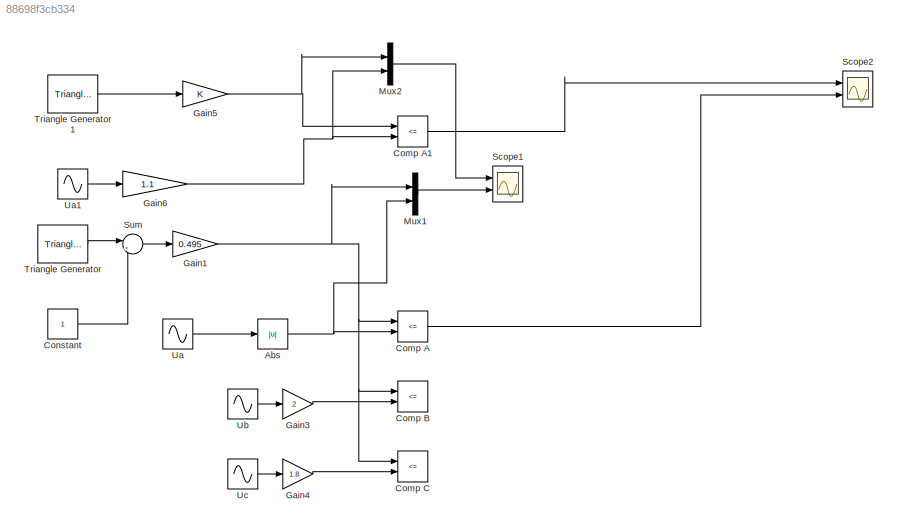
MODEL slx_88698f3cb334
KIND model
BLOCK [Abs] Abs
  SaturateOnIntegerOverflow = off
BLOCK [RelationalOperator] Comp A
  InputSameDT = off
  Operator = <=
  OutDataTypeStr = boolean
  Ports = [2, 1]
BLOCK [RelationalOperator] Comp A1
  InputSameDT = off
  Operator = <=
  OutDataTypeStr = boolean
  Ports = [2, 1]
BLOCK [RelationalOperator] Comp B
  InputSameDT = off
  Operator = <=
  OutDataTypeStr = boolean
  Ports = [2, 1]
BLOCK [RelationalOperator] Comp C
  InputSameDT = off
  Operator = <=
  OutDataTypeStr = boolean
  Ports = [2, 1]
BLOCK [Constant] Constant
BLOCK [Gain] Gain1
  Gain = 0.495
  OutDataTypeStr = Inherit: Inherit via internal rule
  ParamDataTypeStr = Inherit: Inherit via internal rule
  SaturateOnIntegerOverflow = off
BLOCK [Gain] Gain3
  Gain = 2
  OutDataTypeStr = Inherit: Inherit via internal rule
  ParamDataTypeStr = Inherit: Inherit via internal rule
  SaturateOnIntegerOverflow = off
BLOCK [Gain] Gain4
  Gain = 1.8
  OutDataTypeStr = Inherit: Inherit via internal rule
  ParamDataTypeStr = Inherit: Inherit via internal rule
  SaturateOnIntegerOverflow = off
BLOCK [Gain] Gain5
  OutDataTypeStr = Inherit: Inherit via internal rule
  ParamDataTypeStr = Inherit: Inherit via internal rule
  SaturateOnIntegerOverflow = off
BLOCK [Gain] Gain6
  Gain = 1.1
  OutDataTypeStr = Inherit: Inherit via internal rule
  ParamDataTypeStr = Inherit: Inherit via internal rule
  SaturateOnIntegerOverflow = off
BLOCK [Mux] Mux1
  DisplayOption = bar
  Inputs = 2
  Ports = [2, 1]
BLOCK [Mux] Mux2
  DisplayOption = bar
  Inputs = 2
  Ports = [2, 1]
BLOCK [Scope] Scope1
  DataFormat = StructureWithTime
  Floating = off
  LimitDataPoints = off
  NumInputPorts = 2
  Ports = [2]
  SampleInput = on
  SampleTime = 1/60/5000
  ShowLegends = off
  TimeRange = 0.01
  YMax = 1.2~1.2
  YMin = -1.2~-0.2
BLOCK [Scope] Scope2
  DataFormat = StructureWithTime
  Floating = off
  LimitDataPoints = off
  NumInputPorts = 2
  Ports = [2]
  SampleInput = on
  SampleTime = 1/60/5000
  SaveName = ScopeData1
  ShowLegends = off
  TimeRange = 0.01
  YMax = 1.2~1.2
  YMin = -0.2~-0.2
BLOCK [Sum] Sum
  IconShape = round
  InputSameDT = off
  Inputs = |++
  OutDataTypeStr = Inherit: Inherit via internal rule
  Ports = [2, 1]
  SaturateOnIntegerOverflow = off
BLOCK [Reference] Triangle Generator  REF=powerlib_meascontrol/Pulse & Signal
Generators/Triangle
Generator
  Freq = 6000
  Phase = 0
  Ports = [0, 1]
  SourceBlock = powerlib_meascontrol/Pulse & Signal\nGenerators/Triangle\nGenerator
  SourceType = Triangle Generator
  Ts = 0
BLOCK [Reference] Triangle Generator1  REF=powerlib_meascontrol/Pulse & Signal
Generators/Triangle
Generator
  Freq = 6000
  Phase = 0
  Ports = [0, 1]
  SourceBlock = powerlib_meascontrol/Pulse & Signal\nGenerators/Triangle\nGenerator
  SourceType = Triangle Generator
  Ts = 0
BLOCK [Sin] Ua
  Frequency = 2*pi*25
  Phase = 0.785
  Ports = [0, 1]
  SampleTime = 0
  VectorParams1D = off
BLOCK [Sin] Ua1
  Frequency = 2*pi*50
  Ports = [0, 1]
  SampleTime = 0
  VectorParams1D = off
BLOCK [Sin] Ub
  Frequency = 2*pi*50
  Phase = 1.0472
  Ports = [0, 1]
  SampleTime = 0
  VectorParams1D = off
BLOCK [Sin] Uc
  Frequency = 2*pi*50
  Phase = 2.0944
  Ports = [0, 1]
  SampleTime = 0
  VectorParams1D = off
NET Abs:1 -> Comp A:2, Mux1:2
LINE Comp A1:1 -> Scope2:1
LINE Comp A:1 -> Scope2:2
LINE Constant:1 -> Sum:2
NET Gain1:1 -> Comp A:1, Comp B:1, Comp C:1, Mux1:1
LINE Gain3:1 -> Comp B:2
LINE Gain4:1 -> Comp C:2
NET Gain5:1 -> Comp A1:1, Mux2:1
NET Gain6:1 -> Comp A1:2, Mux2:2
LINE Mux1:1 -> Scope1:2
LINE Mux2:1 -> Scope1:1
LINE Sum:1 -> Gain1:1
LINE Triangle Generator1:1 -> Gain5:1
LINE Triangle Generator:1 -> Sum:1
LINE Ua1:1 -> Gain6:1
LINE Ua:1 -> Abs:1
LINE Ub:1 -> Gain3:1
LINE Uc:1 -> Gain4:1
note: NET lines group one-source signal fan-out (src -> all destinations, sorted); 1:1 wires keep LINE
